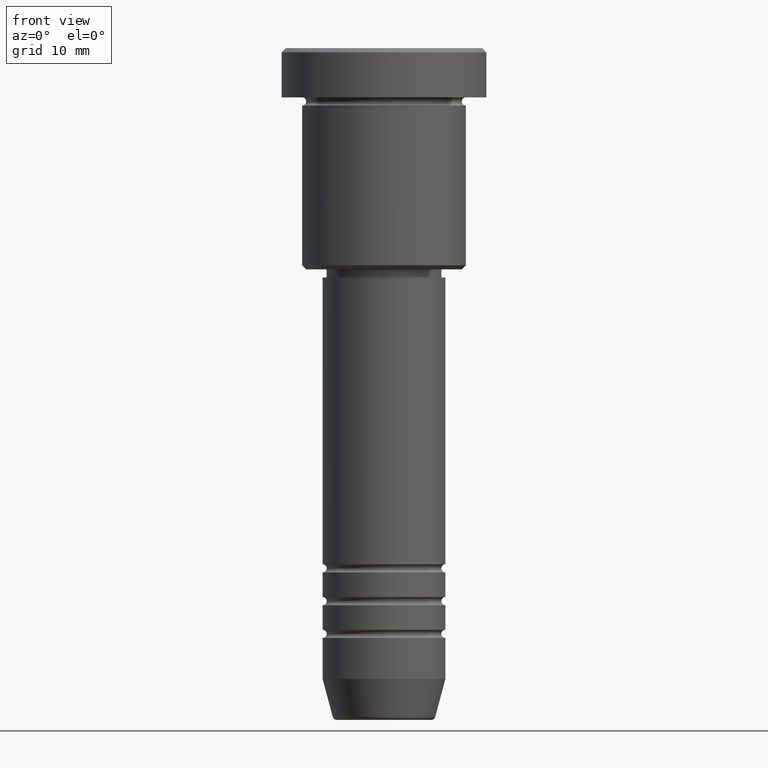
[diagram: clean part render]
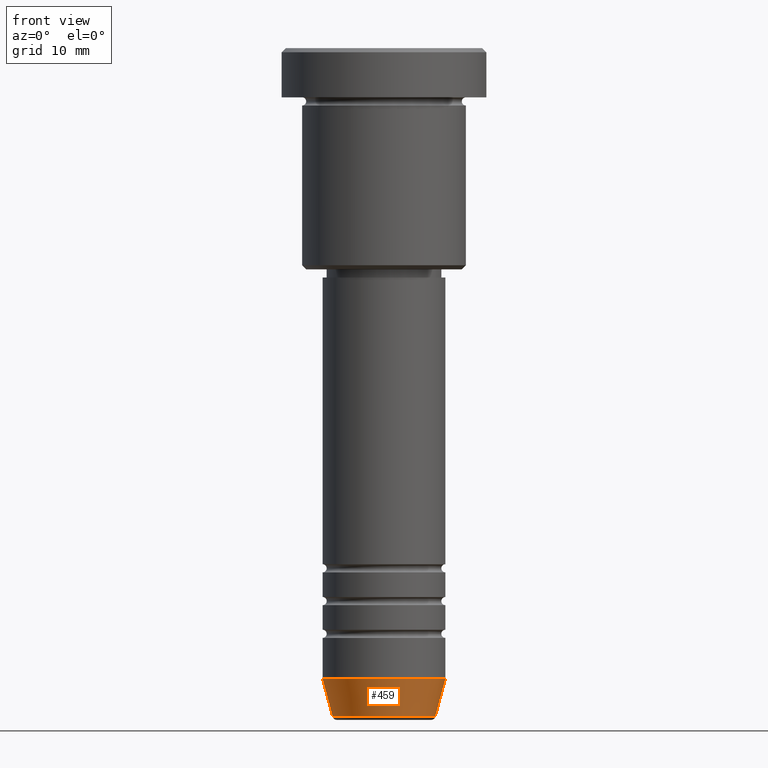
[diagram: same view with one face highlighted and labeled with its STEP entity id]
A machine part, front view. The second image highlights one B-rep face of the part: STEP entity #459.
In plain terms, the highlighted conical surface has half-angle 15 deg.
Its self-contained STEP definition (entity closure, byte-faithful):
#96 = DIRECTION ( 'NONE',  ( -0.2588190451025213501, 3.169619151431772337E-17, 0.9659258262890680902 ) ) ;
#98 = DIRECTION ( 'NONE',  ( -0.000000000000000000, -0.000000000000000000, 1.000000000000000000 ) ) ;
#103 = AXIS2_PLACEMENT_3D ( 'NONE', #495, #945, #757 ) ;
#117 = AXIS2_PLACEMENT_3D ( 'NONE', #308, #1038, #382 ) ;
#146 = ORIENTED_EDGE ( 'NONE', *, *, #747, .F. ) ;
#191 = EDGE_CURVE ( 'NONE', #485, #299, #1108, .T. ) ;
#198 = EDGE_CURVE ( 'NONE', #926, #660, #279, .T. ) ;
#279 = LINE ( 'NONE', #638, #405 ) ;
#299 = VERTEX_POINT ( 'NONE', #731 ) ;
#306 = CONICAL_SURFACE ( 'NONE', #103, 7.500000000000000000, 0.2617993877991500740 ) ;
#308 = CARTESIAN_POINT ( 'NONE',  ( 0.000000000000000000, 0.000000000000000000, -81.62940952255125637 ) ) ;
#377 = DIRECTION ( 'NONE',  ( 1.000000000000000000, 0.000000000000000000, 0.000000000000000000 ) ) ;
#380 = ORIENTED_EDGE ( 'NONE', *, *, #191, .T. ) ;
#382 = DIRECTION ( 'NONE',  ( 1.000000000000000000, 0.000000000000000000, 0.000000000000000000 ) ) ;
#405 = VECTOR ( 'NONE', #96, 1000.000000000000000 ) ;
#459 = ADVANCED_FACE ( 'NONE', ( #486 ), #306, .T. ) ;
#485 = VERTEX_POINT ( 'NONE', #1026 ) ;
#486 = FACE_OUTER_BOUND ( 'NONE', #1004, .T. ) ;
#493 = AXIS2_PLACEMENT_3D ( 'NONE', #1031, #98, #377 ) ;
#495 = CARTESIAN_POINT ( 'NONE',  ( 0.000000000000000000, 0.000000000000000000, -77.00000000000000000 ) ) ;
#559 = CARTESIAN_POINT ( 'NONE',  ( 7.500000000000000000, 0.000000000000000000, -77.00000000000000000 ) ) ;
#565 = CARTESIAN_POINT ( 'NONE',  ( -6.259553456999438659, 8.425296549405629486E-16, -81.62940952255125637 ) ) ;
#612 = ORIENTED_EDGE ( 'NONE', *, *, #198, .F. ) ;
#638 = CARTESIAN_POINT ( 'NONE',  ( -7.500000000000000000, 9.184850993605147944E-16, -77.00000000000000000 ) ) ;
#649 = CIRCLE ( 'NONE', #117, 6.259553456999438659 ) ;
#660 = VERTEX_POINT ( 'NONE', #1181 ) ;
#731 = CARTESIAN_POINT ( 'NONE',  ( 7.500000000000000000, 0.000000000000000000, -77.00000000000000000 ) ) ;
#747 = EDGE_CURVE ( 'NONE', #660, #299, #919, .T. ) ;
#757 = DIRECTION ( 'NONE',  ( 1.000000000000000000, 0.000000000000000000, 0.000000000000000000 ) ) ;
#772 = EDGE_CURVE ( 'NONE', #926, #485, #649, .T. ) ;
#830 = ORIENTED_EDGE ( 'NONE', *, *, #772, .T. ) ;
#919 = CIRCLE ( 'NONE', #493, 7.500000000000000000 ) ;
#926 = VERTEX_POINT ( 'NONE', #565 ) ;
#928 = DIRECTION ( 'NONE',  ( 0.2588190451025213501, 0.000000000000000000, 0.9659258262890680902 ) ) ;
#945 = DIRECTION ( 'NONE',  ( -0.000000000000000000, -0.000000000000000000, 1.000000000000000000 ) ) ;
#946 = VECTOR ( 'NONE', #928, 1000.000000000000000 ) ;
#1004 = EDGE_LOOP ( 'NONE', ( #612, #830, #380, #146 ) ) ;
#1026 = CARTESIAN_POINT ( 'NONE',  ( 6.259553456999438659, 0.000000000000000000, -81.62940952255125637 ) ) ;
#1031 = CARTESIAN_POINT ( 'NONE',  ( 0.000000000000000000, 0.000000000000000000, -77.00000000000000000 ) ) ;
#1038 = DIRECTION ( 'NONE',  ( -0.000000000000000000, -0.000000000000000000, 1.000000000000000000 ) ) ;
#1108 = LINE ( 'NONE', #559, #946 ) ;
#1181 = CARTESIAN_POINT ( 'NONE',  ( -7.500000000000000000, 9.184850993605147944E-16, -77.00000000000000000 ) ) ;